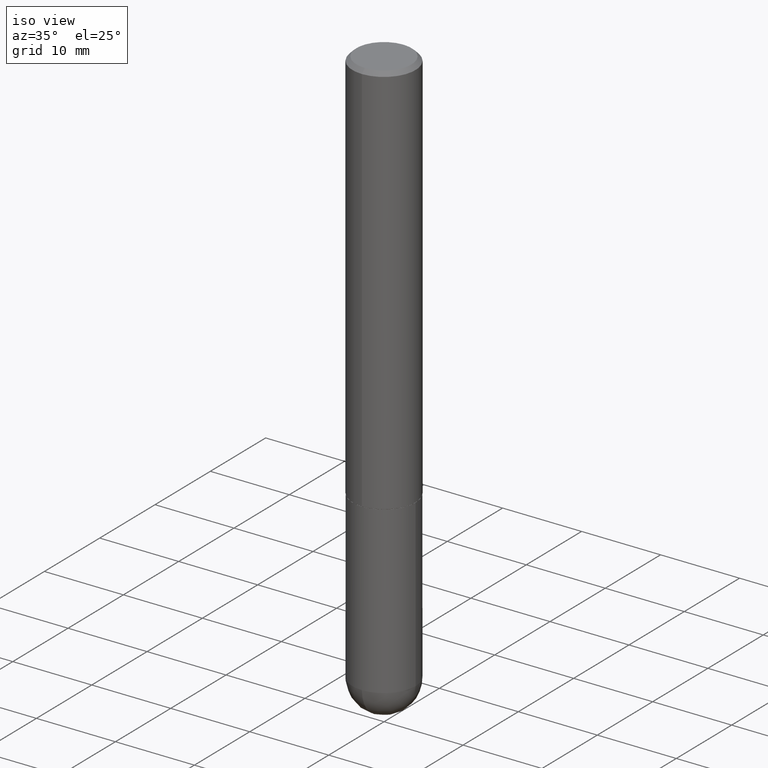
[diagram: clean part render]
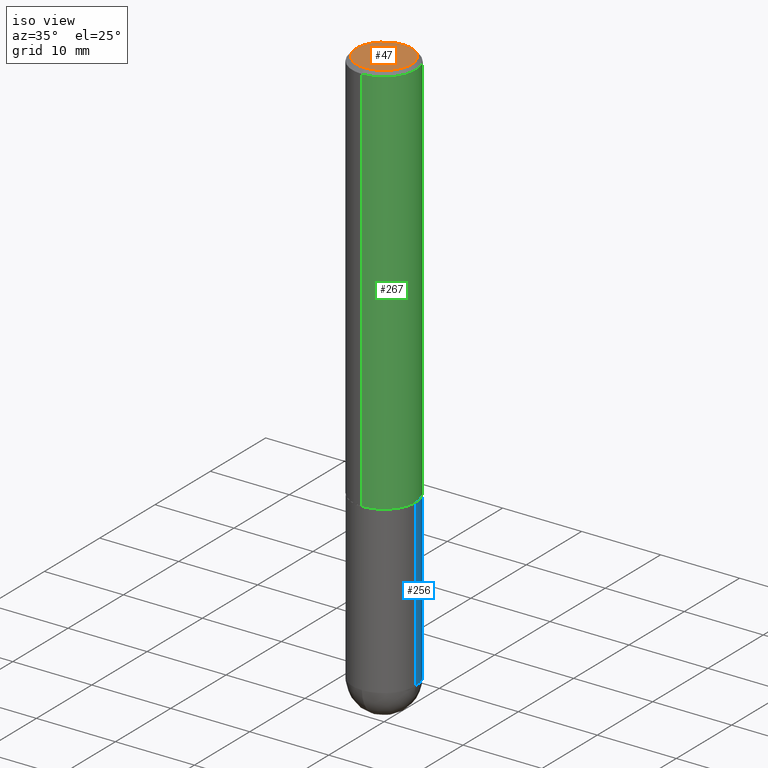
[diagram: same view with three faces highlighted in distinct colors, each labeled with its STEP entity id]
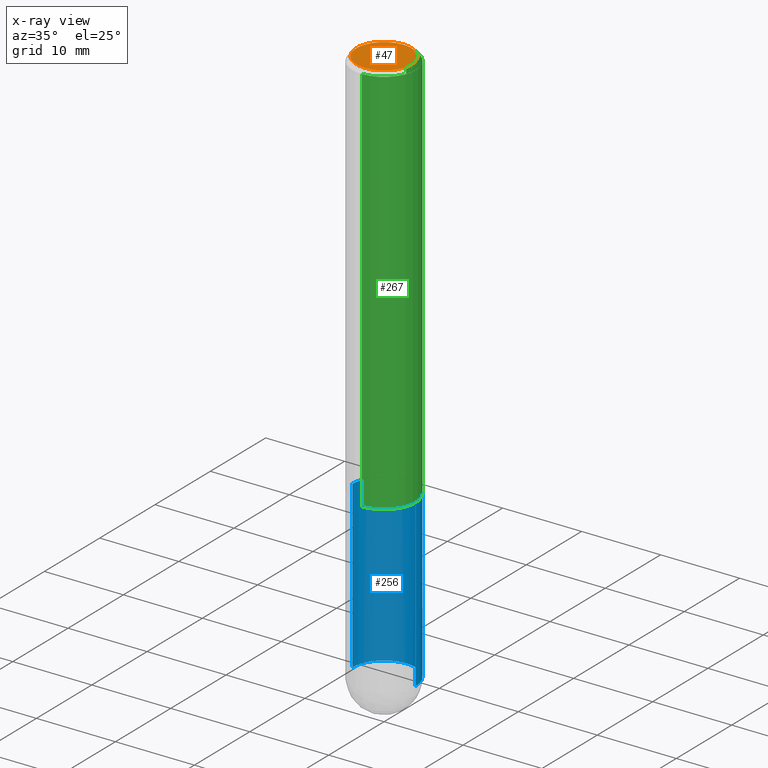
[diagram: x-ray of the same camera — body ghosted, the three highlighted faces saturated]
A machine part, iso view with three faces highlighted in distinct colors.
The next image is the same camera in x-ray (body ghosted, the three faces saturated) — at least one of them is partly hidden behind the body in this view.
Their STEP definitions:

[orange] entity #47 — the highlighted planar face has unit normal (0, -0, -1).
#3 = EDGE_CURVE ( 'NONE', #317, #253, #392, .T. ) ;
#15 = DIRECTION ( 'NONE',  ( 2.452606242276133237E-29, -3.481260124123204048E-15, -1.000000000000000000 ) ) ;
#18 = DIRECTION ( 'NONE',  ( -6.982962677686264344E-15, -1.000000000000000000, 3.481260124123203654E-15 ) ) ;
#22 = AXIS2_PLACEMENT_3D ( 'NONE', #306, #15, #398 ) ;
#35 = CARTESIAN_POINT ( 'NONE',  ( -3.315604375444811306E-45, 4.706210520320814560E-31, 1.351869826592211062E-16 ) ) ;
#47 = ADVANCED_FACE ( 'NONE', ( #85 ), #303, .F. ) ;
#57 = CARTESIAN_POINT ( 'NONE',  ( -1.011923454671299856E-15, -0.1374999999999998446, 6.138602497261609726E-16 ) ) ;
#85 = FACE_OUTER_BOUND ( 'NONE', #335, .T. ) ;
#94 = ORIENTED_EDGE ( 'NONE', *, *, #3, .T. ) ;
#98 = DIRECTION ( 'NONE',  ( -2.452606242276133797E-29, 3.481260124123203654E-15, 1.000000000000000000 ) ) ;
#163 = AXIS2_PLACEMENT_3D ( 'NONE', #35, #98, #231 ) ;
#174 = CARTESIAN_POINT ( 'NONE',  ( -3.315604375444811306E-45, 4.706210520320814560E-31, 1.351869826592211062E-16 ) ) ;
#225 = AXIS2_PLACEMENT_3D ( 'NONE', #174, #245, #18 ) ;
#231 = DIRECTION ( 'NONE',  ( -6.982962677686264344E-15, -1.000000000000000000, 3.481260124123203654E-15 ) ) ;
#245 = DIRECTION ( 'NONE',  ( -2.452606242276133797E-29, 3.481260124123203654E-15, 1.000000000000000000 ) ) ;
#253 = VERTEX_POINT ( 'NONE', #307 ) ;
#284 = CIRCLE ( 'NONE', #163, 0.1374999999999998446 ) ;
#303 = PLANE ( 'NONE',  #22 ) ;
#306 = CARTESIAN_POINT ( 'NONE',  ( 9.601573681818602922E-16, 0.1374999999999998446, -4.110797757373293625E-16 ) ) ;
#307 = CARTESIAN_POINT ( 'NONE',  ( 1.029986994958723590E-15, 0.1374999999999998446, -3.434862844077188094E-16 ) ) ;
#317 = VERTEX_POINT ( 'NONE', #57 ) ;
#325 = ORIENTED_EDGE ( 'NONE', *, *, #350, .T. ) ;
#335 = EDGE_LOOP ( 'NONE', ( #325, #94 ) ) ;
#350 = EDGE_CURVE ( 'NONE', #253, #317, #284, .T. ) ;
#392 = CIRCLE ( 'NONE', #225, 0.1374999999999998446 ) ;
#398 = DIRECTION ( 'NONE',  ( 6.982962677686265922E-15, 1.000000000000000000, -3.481260124123204048E-15 ) ) ;

[blue] entity #256 — the highlighted cylindrical surface (partial cylindrical patch) has radius 4.0005 mm, axis along (-0, 0, 1).
#25 = CARTESIAN_POINT ( 'NONE',  ( 0.000000000000000000, 0.000000000000000000, 0.000000000000000000 ) ) ;
#27 = DIRECTION ( 'NONE',  ( 1.000000000000000000, -6.982962677686265922E-15, 4.876176775795935232E-29 ) ) ;
#29 = VECTOR ( 'NONE', #406, 39.37007874015748143 ) ;
#31 = ORIENTED_EDGE ( 'NONE', *, *, #175, .T. ) ;
#38 = DIRECTION ( 'NONE',  ( -2.445468806185136877E-29, 3.491481338843145188E-15, 1.000000000000000000 ) ) ;
#44 = AXIS2_PLACEMENT_3D ( 'NONE', #132, #263, #241 ) ;
#53 = CARTESIAN_POINT ( 'NONE',  ( -0.1575000000000000011, -7.197254592168330052E-15, -1.968499999999999694 ) ) ;
#59 = ORIENTED_EDGE ( 'NONE', *, *, #154, .T. ) ;
#68 = CARTESIAN_POINT ( 'NONE',  ( 0.1575000000000000011, -9.416176022726072770E-15, -2.795299999999999674 ) ) ;
#80 = DIRECTION ( 'NONE',  ( -2.445468806185136597E-29, 3.491481338843145583E-15, 1.000000000000000000 ) ) ;
#100 = CIRCLE ( 'NONE', #265, 0.1575000000000000011 ) ;
#103 = AXIS2_PLACEMENT_3D ( 'NONE', #25, #251, #27 ) ;
#115 = FACE_OUTER_BOUND ( 'NONE', #193, .T. ) ;
#128 = VERTEX_POINT ( 'NONE', #205 ) ;
#132 = CARTESIAN_POINT ( 'NONE',  ( 6.835818953929311707E-29, -9.759737786468243605E-15, -2.795299999999999674 ) ) ;
#136 = CIRCLE ( 'NONE', #44, 0.1575000000000000011 ) ;
#154 = EDGE_CURVE ( 'NONE', #128, #289, #136, .T. ) ;
#159 = EDGE_CURVE ( 'NONE', #351, #160, #209, .T. ) ;
#160 = VERTEX_POINT ( 'NONE', #260 ) ;
#165 = CARTESIAN_POINT ( 'NONE',  ( 6.835818953929311707E-29, -9.759737786468243605E-15, -2.795299999999999674 ) ) ;
#168 = CARTESIAN_POINT ( 'NONE',  ( 0.1575000000000000011, -1.099816621735586889E-15, 7.679978421878598033E-30 ) ) ;
#175 = EDGE_CURVE ( 'NONE', #351, #128, #100, .T. ) ;
#180 = CYLINDRICAL_SURFACE ( 'NONE', #103, 0.1575000000000000011 ) ;
#188 = CARTESIAN_POINT ( 'NONE',  ( -0.1575000000000000011, 1.119104808822157801E-15, -7.747322767151475583E-30 ) ) ;
#190 = CIRCLE ( 'NONE', #343, 0.1575000000000000011 ) ;
#193 = EDGE_LOOP ( 'NONE', ( #59, #233, #412, #320, #31 ) ) ;
#205 = CARTESIAN_POINT ( 'NONE',  ( 1.099816621735654731E-15, 0.1574999999999901201, -2.795300000000000118 ) ) ;
#209 = LINE ( 'NONE', #168, #272 ) ;
#216 = CARTESIAN_POINT ( 'NONE',  ( -0.1575000000000000011, -7.197254592168330052E-15, -2.795299999999999674 ) ) ;
#219 = CARTESIAN_POINT ( 'NONE',  ( 4.813905344975440714E-29, -6.872981015512730918E-15, -1.968499999999999694 ) ) ;
#233 = ORIENTED_EDGE ( 'NONE', *, *, #318, .T. ) ;
#234 = DIRECTION ( 'NONE',  ( -2.445468806185136597E-29, 3.491481338843145583E-15, 1.000000000000000000 ) ) ;
#241 = DIRECTION ( 'NONE',  ( 1.000000000000000000, -6.982962677686261977E-15, 0.000000000000000000 ) ) ;
#251 = DIRECTION ( 'NONE',  ( -2.445468806185136597E-29, 3.491481338843145583E-15, 1.000000000000000000 ) ) ;
#256 = ADVANCED_FACE ( 'NONE', ( #115 ), #180, .T. ) ;
#260 = CARTESIAN_POINT ( 'NONE',  ( 0.1575000000000000011, -7.972797637248318399E-15, -1.968499999999999694 ) ) ;
#262 = DIRECTION ( 'NONE',  ( 1.000000000000000000, -6.982962677686261977E-15, 0.000000000000000000 ) ) ;
#263 = DIRECTION ( 'NONE',  ( -2.445468806185136597E-29, 3.491481338843145583E-15, 1.000000000000000000 ) ) ;
#265 = AXIS2_PLACEMENT_3D ( 'NONE', #165, #234, #262 ) ;
#272 = VECTOR ( 'NONE', #38, 39.37007874015748143 ) ;
#280 = EDGE_CURVE ( 'NONE', #160, #331, #190, .T. ) ;
#281 = DIRECTION ( 'NONE',  ( 1.000000000000000000, -6.982962677686268288E-15, 0.000000000000000000 ) ) ;
#289 = VERTEX_POINT ( 'NONE', #216 ) ;
#318 = EDGE_CURVE ( 'NONE', #289, #331, #404, .T. ) ;
#320 = ORIENTED_EDGE ( 'NONE', *, *, #159, .F. ) ;
#331 = VERTEX_POINT ( 'NONE', #53 ) ;
#343 = AXIS2_PLACEMENT_3D ( 'NONE', #219, #80, #281 ) ;
#351 = VERTEX_POINT ( 'NONE', #68 ) ;
#404 = LINE ( 'NONE', #188, #29 ) ;
#406 = DIRECTION ( 'NONE',  ( -2.445468806185136877E-29, 3.491481338843145188E-15, 1.000000000000000000 ) ) ;
#412 = ORIENTED_EDGE ( 'NONE', *, *, #280, .F. ) ;

[green] entity #267 — the highlighted cylindrical surface (partial cylindrical patch) has radius 4.0005 mm, axis along (-0, 0, 1).
#9 = AXIS2_PLACEMENT_3D ( 'NONE', #14, #293, #10 ) ;
#10 = DIRECTION ( 'NONE',  ( -6.982962677686265922E-15, -1.000000000000000000, 3.469013325287954477E-15 ) ) ;
#14 = CARTESIAN_POINT ( 'NONE',  ( 4.905212484552274391E-31, -6.962520248246417464E-17, -0.02000000000000003164 ) ) ;
#23 = FACE_OUTER_BOUND ( 'NONE', #258, .T. ) ;
#34 = ORIENTED_EDGE ( 'NONE', *, *, #215, .T. ) ;
#37 = CIRCLE ( 'NONE', #210, 0.1575000000000001954 ) ;
#48 = CARTESIAN_POINT ( 'NONE',  ( 0.000000000000000000, 0.000000000000000000, 0.000000000000000000 ) ) ;
#52 = VECTOR ( 'NONE', #305, 39.37007874015748143 ) ;
#55 = LINE ( 'NONE', #222, #69 ) ;
#69 = VECTOR ( 'NONE', #116, 39.37007874015748143 ) ;
#90 = DIRECTION ( 'NONE',  ( -6.982962677686265922E-15, -1.000000000000000000, 3.469013325287948955E-15 ) ) ;
#109 = DIRECTION ( 'NONE',  ( -2.452606242276133797E-29, 3.481260124123203654E-15, 1.000000000000000000 ) ) ;
#116 = DIRECTION ( 'NONE',  ( -2.452606242276134078E-29, 3.481260124123204048E-15, 1.000000000000000000 ) ) ;
#124 = ORIENTED_EDGE ( 'NONE', *, *, #131, .F. ) ;
#131 = EDGE_CURVE ( 'NONE', #309, #229, #250, .T. ) ;
#149 = DIRECTION ( 'NONE',  ( -2.452606242276133797E-29, 3.481260124123203654E-15, 1.000000000000000000 ) ) ;
#170 = VERTEX_POINT ( 'NONE', #201 ) ;
#198 = CARTESIAN_POINT ( 'NONE',  ( -1.099816621735539951E-15, -0.1575000000000070510, -1.967499999999999138 ) ) ;
#201 = CARTESIAN_POINT ( 'NONE',  ( 1.119104808822183241E-15, 0.1574999999999933398, -1.967500000000000249 ) ) ;
#210 = AXIS2_PLACEMENT_3D ( 'NONE', #310, #149, #90 ) ;
#212 = LINE ( 'NONE', #276, #52 ) ;
#214 = ORIENTED_EDGE ( 'NONE', *, *, #286, .F. ) ;
#215 = EDGE_CURVE ( 'NONE', #170, #229, #55, .T. ) ;
#222 = CARTESIAN_POINT ( 'NONE',  ( 1.119104808822158195E-15, 0.1575000000000000844, -5.482984695494049531E-16 ) ) ;
#229 = VERTEX_POINT ( 'NONE', #348 ) ;
#236 = AXIS2_PLACEMENT_3D ( 'NONE', #48, #109, #269 ) ;
#246 = CARTESIAN_POINT ( 'NONE',  ( -1.080528434649015385E-15, -0.1575000000000000289, -0.01999999999999948347 ) ) ;
#250 = CIRCLE ( 'NONE', #9, 0.1574999999999999456 ) ;
#258 = EDGE_LOOP ( 'NONE', ( #355, #34, #124, #214 ) ) ;
#267 = ADVANCED_FACE ( 'NONE', ( #23 ), #400, .T. ) ;
#269 = DIRECTION ( 'NONE',  ( -6.982962677686265922E-15, -1.000000000000000000, 3.481260124123204048E-15 ) ) ;
#276 = CARTESIAN_POINT ( 'NONE',  ( -1.099816621735587480E-15, -0.1575000000000000844, 5.482984695494049531E-16 ) ) ;
#286 = EDGE_CURVE ( 'NONE', #354, #309, #212, .T. ) ;
#293 = DIRECTION ( 'NONE',  ( -2.452606242276133797E-29, 3.481260124123203654E-15, 1.000000000000000000 ) ) ;
#305 = DIRECTION ( 'NONE',  ( -2.452606242276134078E-29, 3.481260124123204048E-15, 1.000000000000000000 ) ) ;
#309 = VERTEX_POINT ( 'NONE', #246 ) ;
#310 = CARTESIAN_POINT ( 'NONE',  ( 4.825502781678292621E-29, -6.849379294212400691E-15, -1.967499999999999805 ) ) ;
#346 = EDGE_CURVE ( 'NONE', #354, #170, #37, .T. ) ;
#348 = CARTESIAN_POINT ( 'NONE',  ( 1.099816621735586889E-15, 0.1574999999999998901, -0.02000000000000057634 ) ) ;
#354 = VERTEX_POINT ( 'NONE', #198 ) ;
#355 = ORIENTED_EDGE ( 'NONE', *, *, #346, .T. ) ;
#400 = CYLINDRICAL_SURFACE ( 'NONE', #236, 0.1575000000000000844 ) ;